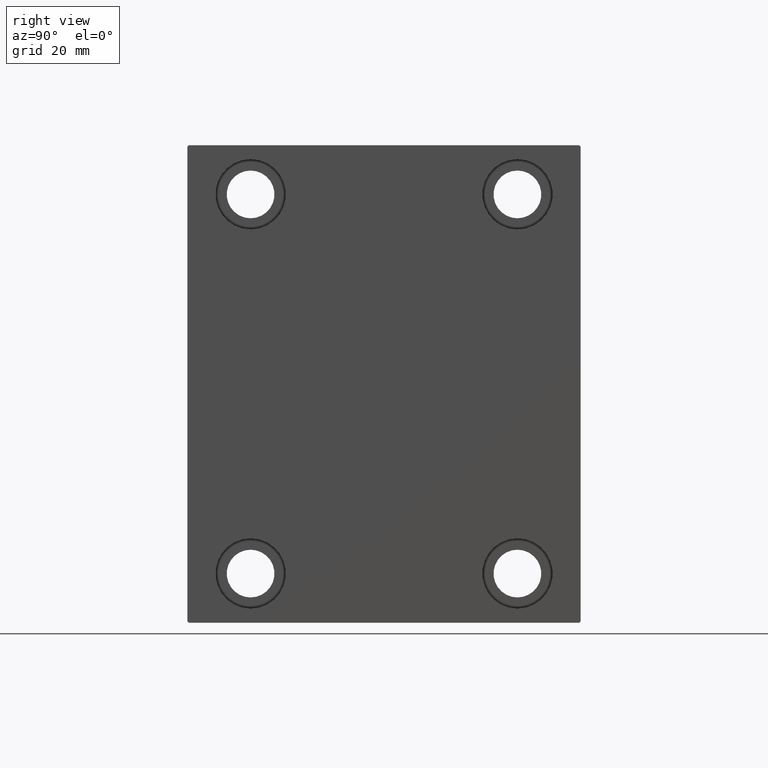
[diagram: clean part render]
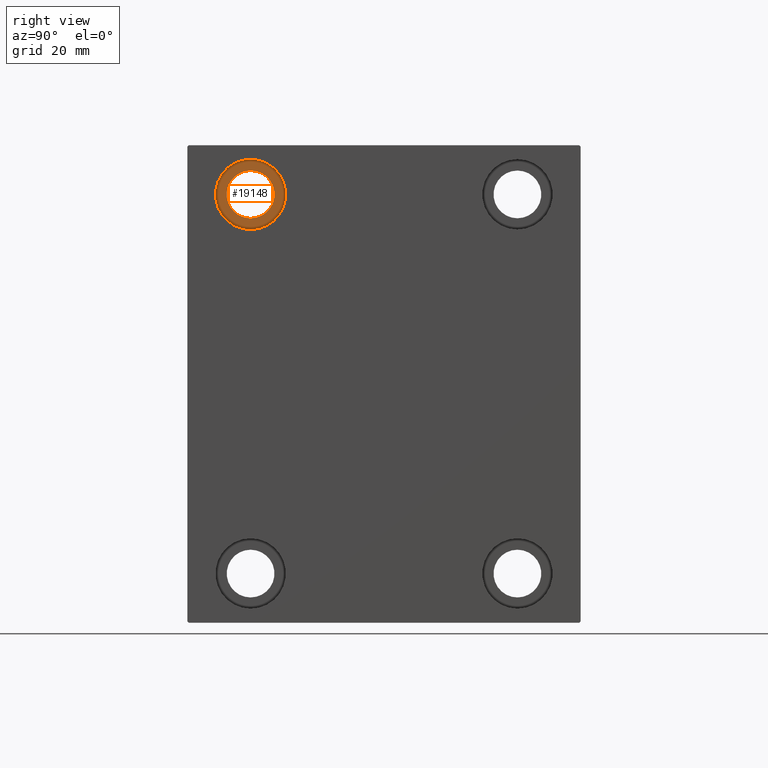
[diagram: same view with one face highlighted and labeled with its STEP entity id]
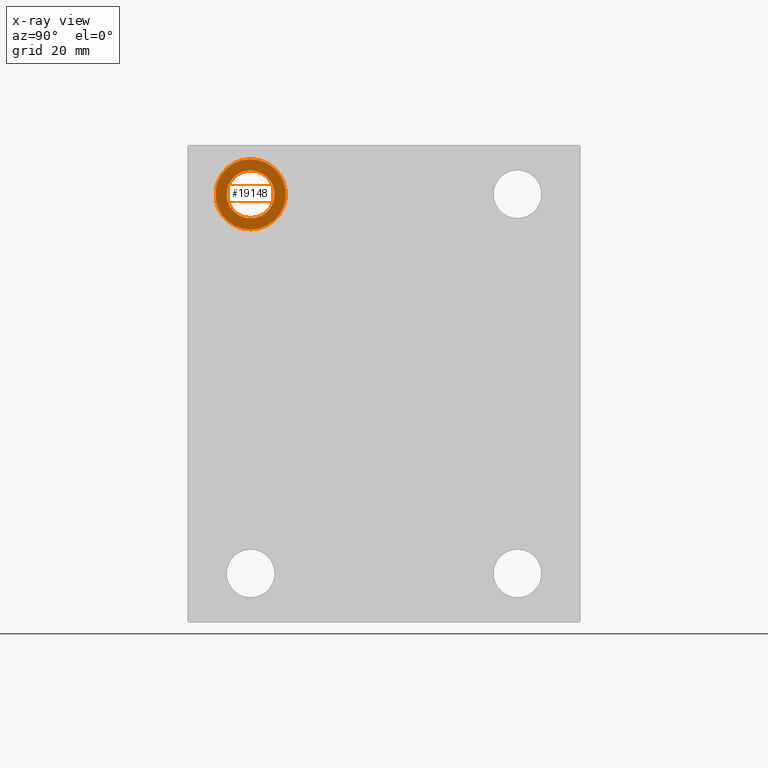
[diagram: x-ray of the same camera — body ghosted, the highlighted face saturated]
A machine part, right view. The second image highlights one B-rep face of the part: STEP entity #19148.
The next image is the same camera in x-ray: the body ghosted, the highlighted face saturated — about 0% of this face is hidden behind the body in this view.
In plain terms, the highlighted planar face has unit normal (1, 0, 0).
Its self-contained STEP definition (entity closure, byte-faithful):
#1137 = DIRECTION ( 'NONE',  ( -1.000000000000000000, -0.000000000000000000, -0.000000000000000000 ) ) ;
#2092 = DIRECTION ( 'NONE',  ( -1.000000000000000000, -0.000000000000000000, -0.000000000000000000 ) ) ;
#2316 = CIRCLE ( 'NONE', #3742, 12.50000000000001066 ) ;
#2466 = AXIS2_PLACEMENT_3D ( 'NONE', #3504, #26879, #33338 ) ;
#3183 = CIRCLE ( 'NONE', #2466, 8.500000000000007105 ) ;
#3504 = CARTESIAN_POINT ( 'NONE',  ( 108.0000000000000000, -47.49999999999997868, 67.50000000000000000 ) ) ;
#3742 = AXIS2_PLACEMENT_3D ( 'NONE', #14918, #1137, #35159 ) ;
#5416 = DIRECTION ( 'NONE',  ( 0.000000000000000000, 0.000000000000000000, -1.000000000000000000 ) ) ;
#5640 = AXIS2_PLACEMENT_3D ( 'NONE', #8088, #24572, #37895 ) ;
#6598 = ORIENTED_EDGE ( 'NONE', *, *, #31673, .F. ) ;
#7585 = ORIENTED_EDGE ( 'NONE', *, *, #12079, .F. ) ;
#8088 = CARTESIAN_POINT ( 'NONE',  ( 108.0000000000000000, 0.000000000000000000, 0.000000000000000000 ) ) ;
#8362 = VERTEX_POINT ( 'NONE', #35867 ) ;
#11856 = CIRCLE ( 'NONE', #36015, 12.50000000000001066 ) ;
#12079 = EDGE_CURVE ( 'NONE', #33473, #23933, #11856, .T. ) ;
#13968 = DIRECTION ( 'NONE',  ( 0.000000000000000000, 0.000000000000000000, 1.000000000000000000 ) ) ;
#14234 = EDGE_LOOP ( 'NONE', ( #7585, #6598 ) ) ;
#14329 = FACE_BOUND ( 'NONE', #14731, .T. ) ;
#14731 = EDGE_LOOP ( 'NONE', ( #22157, #14987 ) ) ;
#14918 = CARTESIAN_POINT ( 'NONE',  ( 108.0000000000000000, -47.49999999999997868, 67.50000000000000000 ) ) ;
#14987 = ORIENTED_EDGE ( 'NONE', *, *, #38231, .T. ) ;
#15833 = CARTESIAN_POINT ( 'NONE',  ( 108.0000000000000000, -47.49999999999997868, 55.00000000000000000 ) ) ;
#16349 = EDGE_CURVE ( 'NONE', #8362, #26731, #22636, .T. ) ;
#18092 = FACE_OUTER_BOUND ( 'NONE', #14234, .T. ) ;
#19148 = ADVANCED_FACE ( 'NONE', ( #18092, #14329 ), #27922, .T. ) ;
#22157 = ORIENTED_EDGE ( 'NONE', *, *, #16349, .T. ) ;
#22636 = CIRCLE ( 'NONE', #30451, 8.500000000000007105 ) ;
#23771 = DIRECTION ( 'NONE',  ( -1.000000000000000000, -0.000000000000000000, -0.000000000000000000 ) ) ;
#23933 = VERTEX_POINT ( 'NONE', #26230 ) ;
#24572 = DIRECTION ( 'NONE',  ( 1.000000000000000000, 0.000000000000000000, -0.000000000000000000 ) ) ;
#25817 = CARTESIAN_POINT ( 'NONE',  ( 108.0000000000000000, -47.49999999999997868, 59.00000000000000000 ) ) ;
#26230 = CARTESIAN_POINT ( 'NONE',  ( 108.0000000000000000, -47.49999999999997868, 80.00000000000001421 ) ) ;
#26731 = VERTEX_POINT ( 'NONE', #25817 ) ;
#26879 = DIRECTION ( 'NONE',  ( -1.000000000000000000, -0.000000000000000000, -0.000000000000000000 ) ) ;
#27922 = PLANE ( 'NONE',  #5640 ) ;
#30451 = AXIS2_PLACEMENT_3D ( 'NONE', #35886, #2092, #5416 ) ;
#30674 = CARTESIAN_POINT ( 'NONE',  ( 108.0000000000000000, -47.49999999999997868, 67.50000000000000000 ) ) ;
#31673 = EDGE_CURVE ( 'NONE', #23933, #33473, #2316, .T. ) ;
#33338 = DIRECTION ( 'NONE',  ( 0.000000000000000000, 0.000000000000000000, -1.000000000000000000 ) ) ;
#33473 = VERTEX_POINT ( 'NONE', #15833 ) ;
#35159 = DIRECTION ( 'NONE',  ( 0.000000000000000000, 0.000000000000000000, 1.000000000000000000 ) ) ;
#35867 = CARTESIAN_POINT ( 'NONE',  ( 108.0000000000000000, -47.49999999999997868, 76.00000000000001421 ) ) ;
#35886 = CARTESIAN_POINT ( 'NONE',  ( 108.0000000000000000, -47.49999999999997868, 67.50000000000000000 ) ) ;
#36015 = AXIS2_PLACEMENT_3D ( 'NONE', #30674, #23771, #13968 ) ;
#37895 = DIRECTION ( 'NONE',  ( 0.000000000000000000, 0.000000000000000000, 1.000000000000000000 ) ) ;
#38231 = EDGE_CURVE ( 'NONE', #26731, #8362, #3183, .T. ) ;